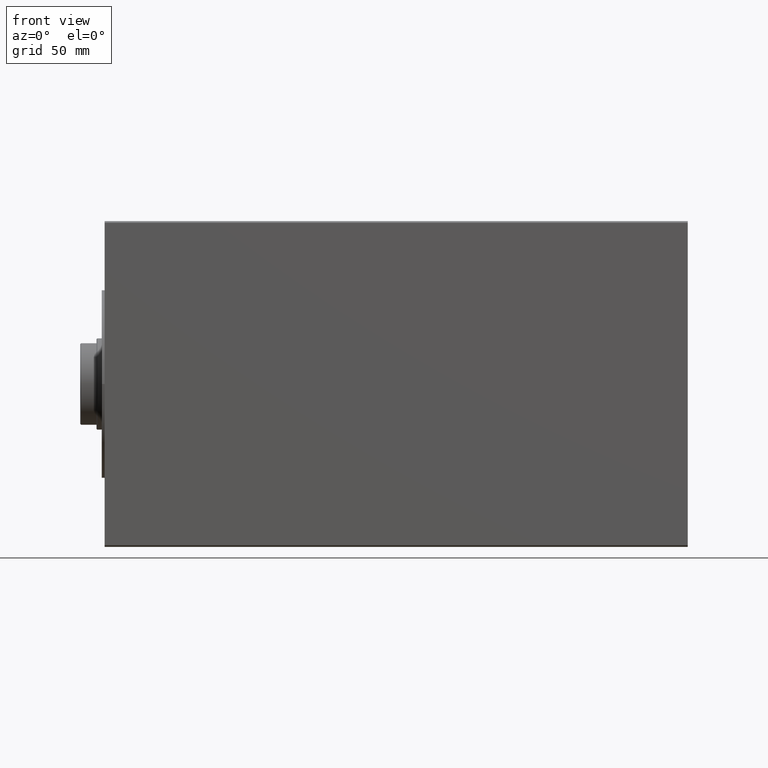
[diagram: clean part render]
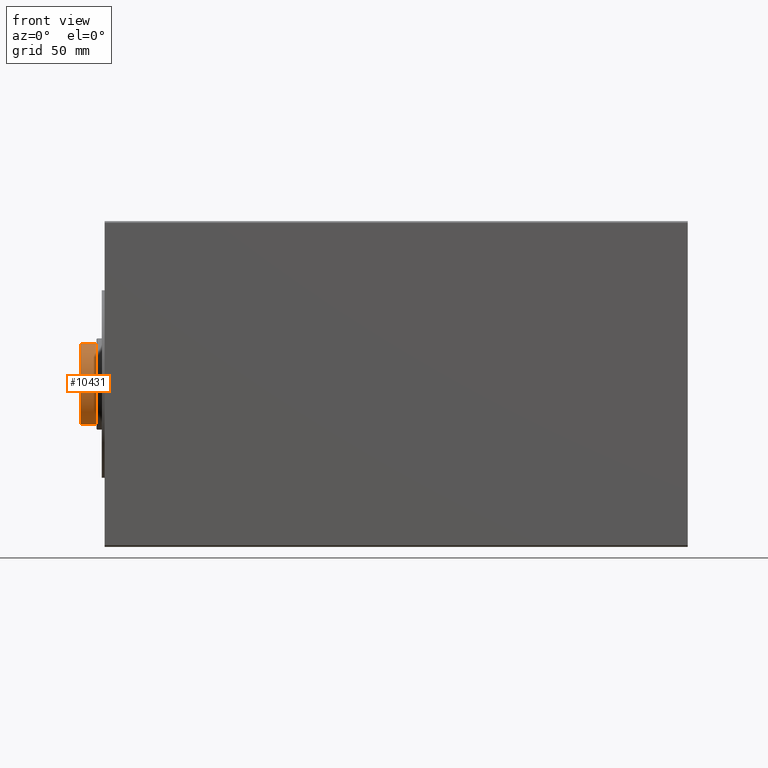
[diagram: same view with one face highlighted and labeled with its STEP entity id]
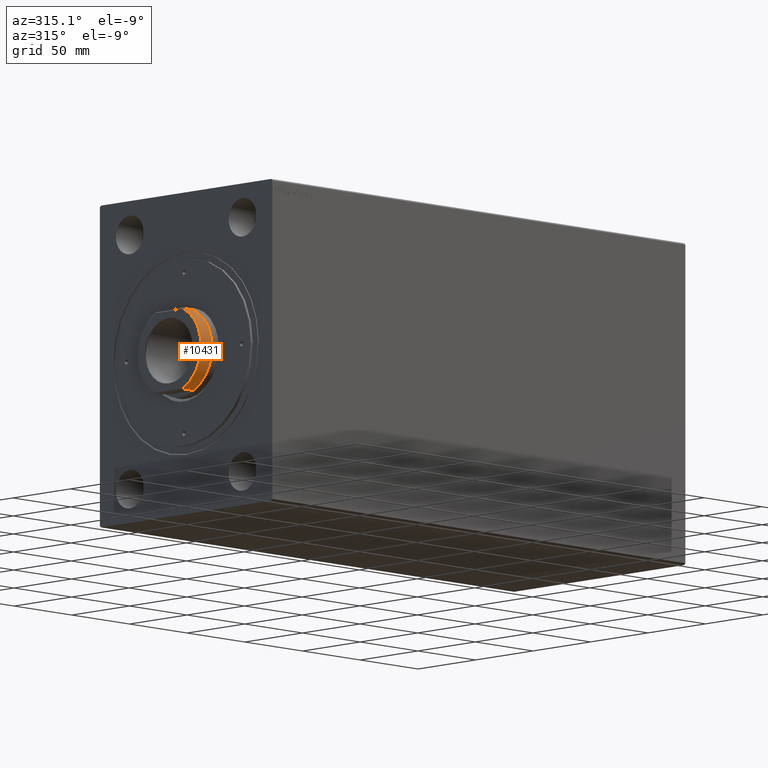
[diagram: same view with one face highlighted and labeled with its STEP entity id]
A machine part, front view. The second image highlights one B-rep face of the part: STEP entity #10431.
A second angle (auxiliary view) of the same face is appended — the face is thin or edge-on in the first view.
In plain terms, the highlighted cylindrical surface (partial cylindrical patch) has radius 27.5 mm, axis along (1, -0, -0).
Its self-contained STEP definition (entity closure, byte-faithful):
#1096 = EDGE_CURVE ( 'NONE', #9214, #2065, #5746, .T. ) ;
#2065 = VERTEX_POINT ( 'NONE', #7842 ) ;
#2123 = CARTESIAN_POINT ( 'NONE',  ( 0.000000000000000000, 0.000000000000000000, 329.6999999999999886 ) ) ;
#3563 = LINE ( 'NONE', #16916, #18662 ) ;
#4679 = CARTESIAN_POINT ( 'NONE',  ( 0.000000000000000000, 0.000000000000000000, 339.2000000000000455 ) ) ;
#5297 = VECTOR ( 'NONE', #16868, 1000.000000000000000 ) ;
#5429 = CARTESIAN_POINT ( 'NONE',  ( -25.00000000000000000, -11.45643923738951919, 329.6999999999999886 ) ) ;
#5746 = CIRCLE ( 'NONE', #28479, 27.49999999999996803 ) ;
#6715 = ORIENTED_EDGE ( 'NONE', *, *, #33941, .T. ) ;
#7842 = CARTESIAN_POINT ( 'NONE',  ( -25.00000000000000000, -11.45643923738952275, 339.2000000000000455 ) ) ;
#9214 = VERTEX_POINT ( 'NONE', #20776 ) ;
#9853 = EDGE_CURVE ( 'NONE', #2065, #26091, #3563, .T. ) ;
#10431 = ADVANCED_FACE ( 'NONE', ( #39634 ), #16059, .T. ) ;
#12720 = DIRECTION ( 'NONE',  ( -1.000000000000000000, 0.000000000000000000, 0.000000000000000000 ) ) ;
#13722 = AXIS2_PLACEMENT_3D ( 'NONE', #2123, #18586, #33023 ) ;
#14905 = DIRECTION ( 'NONE',  ( 1.000000000000000000, 0.000000000000000000, 0.000000000000000000 ) ) ;
#15119 = DIRECTION ( 'NONE',  ( 0.000000000000000000, 0.000000000000000000, -1.000000000000000000 ) ) ;
#16059 = CYLINDRICAL_SURFACE ( 'NONE', #27191, 27.49999999999996803 ) ;
#16868 = DIRECTION ( 'NONE',  ( -0.000000000000000000, -0.000000000000000000, -1.000000000000000000 ) ) ;
#16916 = CARTESIAN_POINT ( 'NONE',  ( -25.00000000000000000, -11.45643923738952275, 339.6999999999999886 ) ) ;
#17410 = EDGE_LOOP ( 'NONE', ( #25452, #28798, #26115, #6715 ) ) ;
#18442 = CARTESIAN_POINT ( 'NONE',  ( 25.00000000000000000, -11.45643923738951919, 329.6999999999999886 ) ) ;
#18586 = DIRECTION ( 'NONE',  ( 0.000000000000000000, 0.000000000000000000, 1.000000000000000000 ) ) ;
#18662 = VECTOR ( 'NONE', #20684, 1000.000000000000000 ) ;
#18895 = LINE ( 'NONE', #32448, #5297 ) ;
#19386 = EDGE_CURVE ( 'NONE', #9214, #26539, #18895, .T. ) ;
#20684 = DIRECTION ( 'NONE',  ( -0.000000000000000000, -0.000000000000000000, -1.000000000000000000 ) ) ;
#20776 = CARTESIAN_POINT ( 'NONE',  ( 25.00000000000000000, -11.45643923738952275, 339.2000000000000455 ) ) ;
#25452 = ORIENTED_EDGE ( 'NONE', *, *, #19386, .F. ) ;
#26091 = VERTEX_POINT ( 'NONE', #5429 ) ;
#26115 = ORIENTED_EDGE ( 'NONE', *, *, #9853, .T. ) ;
#26539 = VERTEX_POINT ( 'NONE', #18442 ) ;
#27191 = AXIS2_PLACEMENT_3D ( 'NONE', #29609, #43199, #12720 ) ;
#28479 = AXIS2_PLACEMENT_3D ( 'NONE', #4679, #15119, #14905 ) ;
#28798 = ORIENTED_EDGE ( 'NONE', *, *, #1096, .T. ) ;
#29609 = CARTESIAN_POINT ( 'NONE',  ( 0.000000000000000000, 0.000000000000000000, 339.6999999999999886 ) ) ;
#32448 = CARTESIAN_POINT ( 'NONE',  ( 25.00000000000000000, -11.45643923738952275, 339.6999999999999886 ) ) ;
#33023 = DIRECTION ( 'NONE',  ( 1.000000000000000000, 0.000000000000000000, 0.000000000000000000 ) ) ;
#33941 = EDGE_CURVE ( 'NONE', #26091, #26539, #36437, .T. ) ;
#36437 = CIRCLE ( 'NONE', #13722, 27.49999999999996803 ) ;
#39634 = FACE_OUTER_BOUND ( 'NONE', #17410, .T. ) ;
#43199 = DIRECTION ( 'NONE',  ( -0.000000000000000000, -0.000000000000000000, -1.000000000000000000 ) ) ;